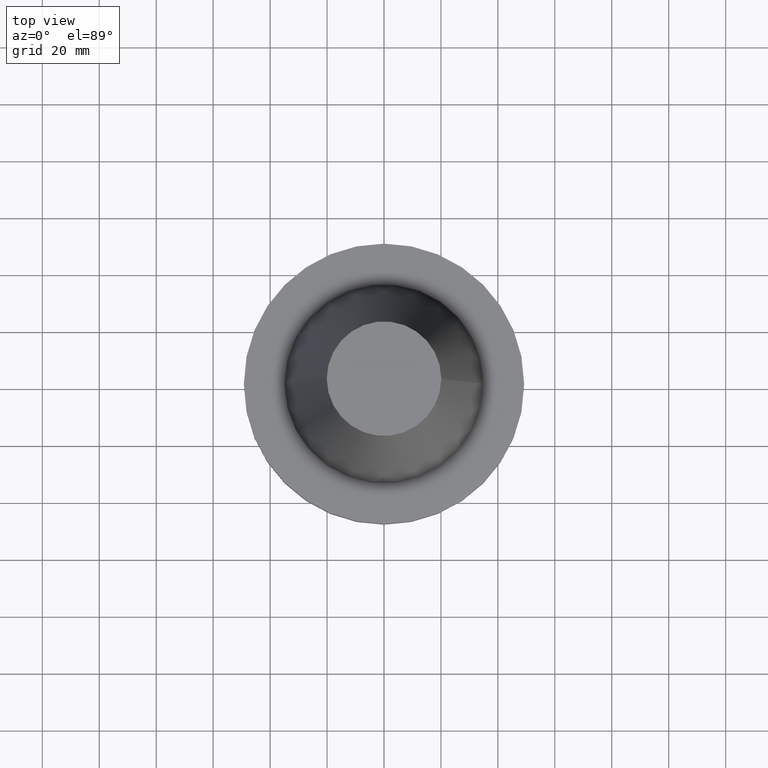
[diagram: clean part render]
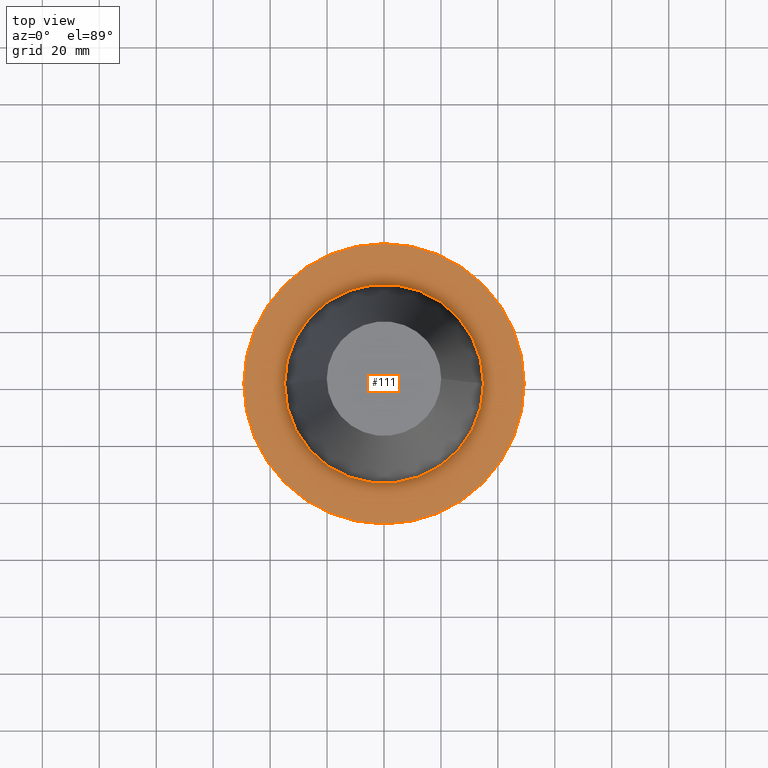
[diagram: same view with one face highlighted and labeled with its STEP entity id]
A machine part, top view. The second image highlights one B-rep face of the part: STEP entity #111.
In plain terms, the highlighted planar face has unit normal (0, 0, -1).
Its self-contained STEP definition (entity closure, byte-faithful):
#46 = EDGE_LOOP ( 'NONE', ( #536, #157 ) ) ;
#56 = CIRCLE ( 'NONE', #216, 34.92499999999999005 ) ;
#66 = PLANE ( 'NONE',  #78 ) ;
#78 = AXIS2_PLACEMENT_3D ( 'NONE', #581, #263, #513 ) ;
#83 = DIRECTION ( 'NONE',  ( -0.000000000000000000, -0.000000000000000000, 1.000000000000000000 ) ) ;
#87 = EDGE_CURVE ( 'NONE', #164, #312, #568, .T. ) ;
#96 = VERTEX_POINT ( 'NONE', #515 ) ;
#111 = ADVANCED_FACE ( 'NONE', ( #318, #401 ), #66, .F. ) ;
#116 = CIRCLE ( 'NONE', #598, 49.21499999999999631 ) ;
#144 = CARTESIAN_POINT ( 'NONE',  ( -49.21499999999999631, 6.027099222003697826E-15, -1.499999999999987566 ) ) ;
#157 = ORIENTED_EDGE ( 'NONE', *, *, #87, .T. ) ;
#164 = VERTEX_POINT ( 'NONE', #144 ) ;
#194 = EDGE_CURVE ( 'NONE', #312, #164, #116, .T. ) ;
#205 = CARTESIAN_POINT ( 'NONE',  ( 34.92499999999999005, 0.000000000000000000, -1.499999999999987566 ) ) ;
#216 = AXIS2_PLACEMENT_3D ( 'NONE', #408, #671, #283 ) ;
#246 = AXIS2_PLACEMENT_3D ( 'NONE', #499, #830, #507 ) ;
#250 = EDGE_CURVE ( 'NONE', #692, #96, #682, .T. ) ;
#263 = DIRECTION ( 'NONE',  ( 0.000000000000000000, 0.000000000000000000, -1.000000000000000000 ) ) ;
#283 = DIRECTION ( 'NONE',  ( 1.000000000000000000, 0.000000000000000000, 0.000000000000000000 ) ) ;
#312 = VERTEX_POINT ( 'NONE', #423 ) ;
#318 = FACE_BOUND ( 'NONE', #835, .T. ) ;
#337 = DIRECTION ( 'NONE',  ( 1.000000000000000000, 0.000000000000000000, 0.000000000000000000 ) ) ;
#382 = CARTESIAN_POINT ( 'NONE',  ( 0.000000000000000000, 0.000000000000000000, -1.499999999999987566 ) ) ;
#401 = FACE_OUTER_BOUND ( 'NONE', #46, .T. ) ;
#408 = CARTESIAN_POINT ( 'NONE',  ( 0.000000000000000000, 0.000000000000000000, -1.499999999999987566 ) ) ;
#411 = ORIENTED_EDGE ( 'NONE', *, *, #702, .F. ) ;
#412 = CARTESIAN_POINT ( 'NONE',  ( 0.000000000000000000, 0.000000000000000000, -1.499999999999987566 ) ) ;
#423 = CARTESIAN_POINT ( 'NONE',  ( 49.21499999999999631, 0.000000000000000000, -1.499999999999987566 ) ) ;
#499 = CARTESIAN_POINT ( 'NONE',  ( 0.000000000000000000, 0.000000000000000000, -1.499999999999987566 ) ) ;
#507 = DIRECTION ( 'NONE',  ( 1.000000000000000000, 0.000000000000000000, 0.000000000000000000 ) ) ;
#513 = DIRECTION ( 'NONE',  ( -1.000000000000000000, 0.000000000000000000, -0.000000000000000000 ) ) ;
#515 = CARTESIAN_POINT ( 'NONE',  ( -34.92499999999999005, 4.277078946022130098E-15, -1.499999999999987566 ) ) ;
#522 = ORIENTED_EDGE ( 'NONE', *, *, #250, .F. ) ;
#536 = ORIENTED_EDGE ( 'NONE', *, *, #194, .T. ) ;
#568 = CIRCLE ( 'NONE', #603, 49.21499999999999631 ) ;
#581 = CARTESIAN_POINT ( 'NONE',  ( 0.000000000000000000, 49.21499999999999631, -1.499999999999992895 ) ) ;
#598 = AXIS2_PLACEMENT_3D ( 'NONE', #412, #83, #669 ) ;
#603 = AXIS2_PLACEMENT_3D ( 'NONE', #382, #795, #337 ) ;
#669 = DIRECTION ( 'NONE',  ( 1.000000000000000000, 0.000000000000000000, 0.000000000000000000 ) ) ;
#671 = DIRECTION ( 'NONE',  ( -0.000000000000000000, -0.000000000000000000, 1.000000000000000000 ) ) ;
#682 = CIRCLE ( 'NONE', #246, 34.92499999999999005 ) ;
#692 = VERTEX_POINT ( 'NONE', #205 ) ;
#702 = EDGE_CURVE ( 'NONE', #96, #692, #56, .T. ) ;
#795 = DIRECTION ( 'NONE',  ( -0.000000000000000000, -0.000000000000000000, 1.000000000000000000 ) ) ;
#830 = DIRECTION ( 'NONE',  ( -0.000000000000000000, -0.000000000000000000, 1.000000000000000000 ) ) ;
#835 = EDGE_LOOP ( 'NONE', ( #522, #411 ) ) ;